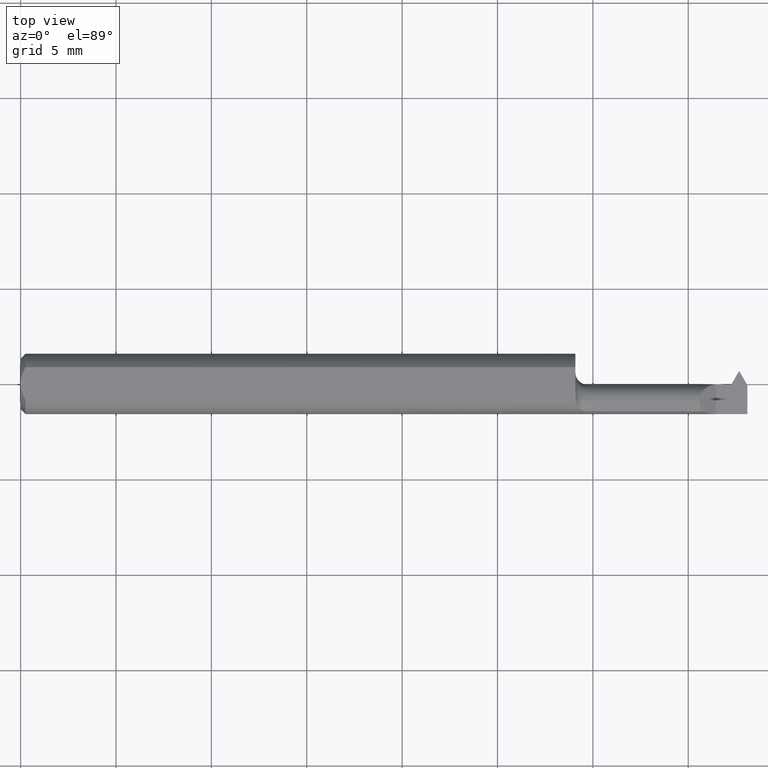
[diagram: clean part render]
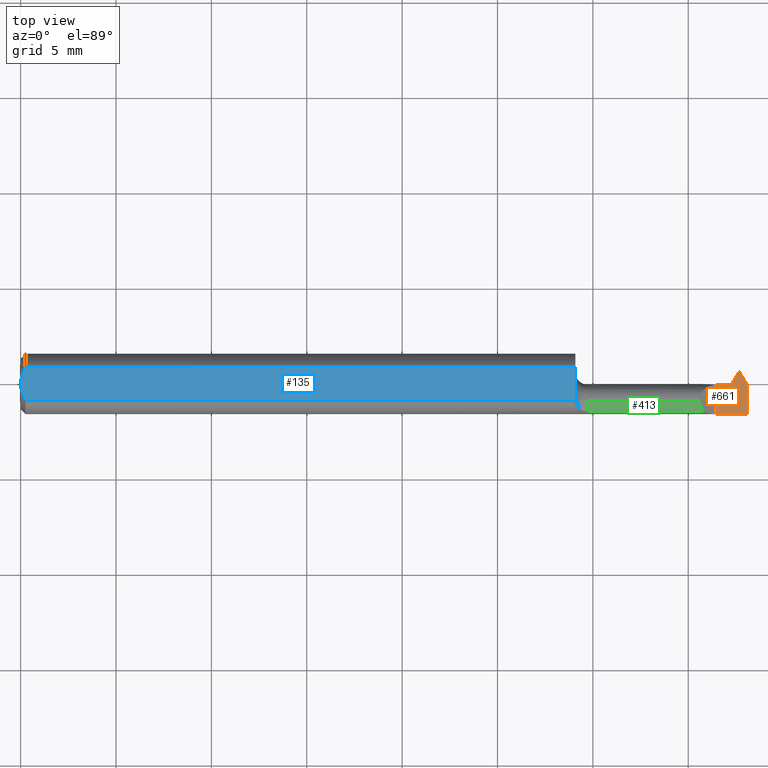
[diagram: same view with three faces highlighted in distinct colors, each labeled with its STEP entity id]
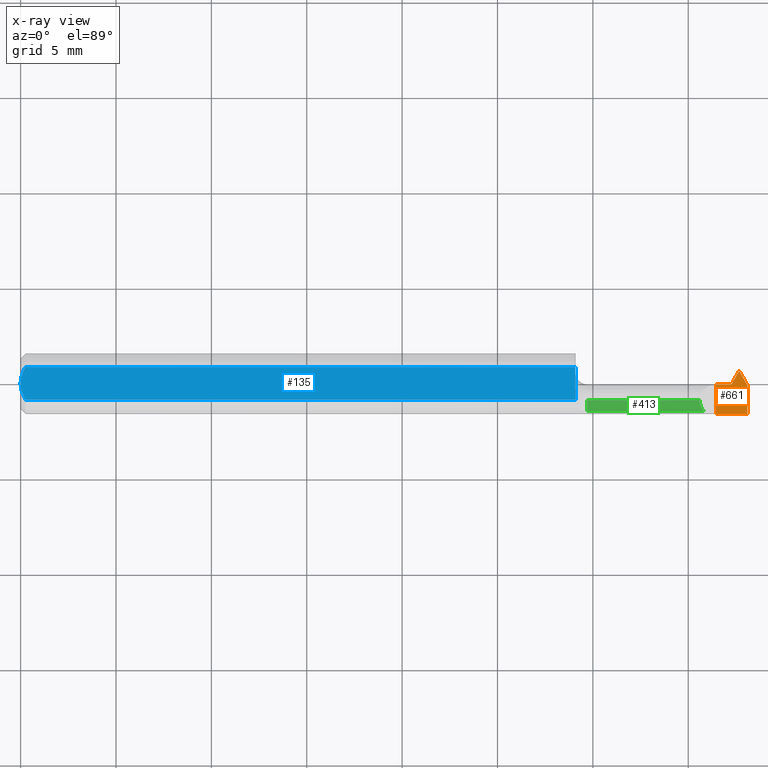
[diagram: x-ray of the same camera — body ghosted, the three highlighted faces saturated]
A machine part, top view with three faces highlighted in distinct colors.
The next image is the same camera in x-ray (body ghosted, the three faces saturated) — at least one of them is partly hidden behind the body in this view.
Their STEP definitions:

[orange] entity #661 — the highlighted planar face has unit normal (-0, 0, -1).
#8 = ORIENTED_EDGE ( 'NONE', *, *, #417, .F. ) ;
#20 = CARTESIAN_POINT ( 'NONE',  ( 1.466661542731880319, -0.001350000000000033031, 0.000000000000000000 ) ) ;
#28 = CARTESIAN_POINT ( 'NONE',  ( 1.145000000000000240, 0.02564999999999998531, 4.347496136973102887E-17 ) ) ;
#61 = CARTESIAN_POINT ( 'NONE',  ( 1.464661542731879873, -0.001349999999999978604, 0.000000000000000000 ) ) ;
#82 = CARTESIAN_POINT ( 'NONE',  ( 1.145000000000000240, -0.001350000000000033031, 4.347496136973102887E-17 ) ) ;
#97 = DIRECTION ( 'NONE',  ( -1.000000000000000000, 0.000000000000000000, 1.224646799147353700E-16 ) ) ;
#105 = ORIENTED_EDGE ( 'NONE', *, *, #757, .F. ) ;
#108 = LINE ( 'NONE', #28, #226 ) ;
#112 = DIRECTION ( 'NONE',  ( 0.000000000000000000, -1.000000000000000000, 0.000000000000000000 ) ) ;
#148 = LINE ( 'NONE', #629, #423 ) ;
#174 = FACE_OUTER_BOUND ( 'NONE', #834, .T. ) ;
#192 = CARTESIAN_POINT ( 'NONE',  ( 1.466661542731880319, -0.001350000000000033031, 0.000000000000000000 ) ) ;
#194 = VECTOR ( 'NONE', #825, 39.37007874015748143 ) ;
#206 = LINE ( 'NONE', #82, #407 ) ;
#218 = VERTEX_POINT ( 'NONE', #20 ) ;
#225 = CARTESIAN_POINT ( 'NONE',  ( 1.500000000000000222, -0.2500000000000000555, 0.000000000000000000 ) ) ;
#226 = VECTOR ( 'NONE', #595, 39.37007874015748143 ) ;
#231 = EDGE_CURVE ( 'NONE', #520, #252, #108, .T. ) ;
#242 = CARTESIAN_POINT ( 'NONE',  ( 1.483749999999999902, 0.02564999999999998531, 0.000000000000000000 ) ) ;
#252 = VERTEX_POINT ( 'NONE', #461 ) ;
#261 = EDGE_CURVE ( 'NONE', #579, #810, #741, .T. ) ;
#287 = ORIENTED_EDGE ( 'NONE', *, *, #261, .F. ) ;
#299 = ORIENTED_EDGE ( 'NONE', *, *, #231, .F. ) ;
#325 = VECTOR ( 'NONE', #647, 39.37007874015748854 ) ;
#377 = CARTESIAN_POINT ( 'NONE',  ( 1.500000000000000222, 0.000000000000000000, 0.000000000000000000 ) ) ;
#380 = VECTOR ( 'NONE', #112, 39.37007874015748143 ) ;
#397 = CARTESIAN_POINT ( 'NONE',  ( 1.435000000000000053, -0.001350000000000033031, 4.347496136973102887E-17 ) ) ;
#401 = CARTESIAN_POINT ( 'NONE',  ( 1.435000000000000053, -0.06235000000000005121, 7.960204194457796709E-18 ) ) ;
#407 = VECTOR ( 'NONE', #623, 39.37007874015748143 ) ;
#411 = VERTEX_POINT ( 'NONE', #61 ) ;
#415 = LINE ( 'NONE', #192, #515 ) ;
#417 = EDGE_CURVE ( 'NONE', #810, #770, #553, .T. ) ;
#421 = CARTESIAN_POINT ( 'NONE',  ( 1.482250000000000068, 0.02564999999999998531, 0.000000000000000000 ) ) ;
#423 = VECTOR ( 'NONE', #838, 39.37007874015748143 ) ;
#430 = EDGE_CURVE ( 'NONE', #411, #218, #415, .T. ) ;
#461 = CARTESIAN_POINT ( 'NONE',  ( 1.483749999999999902, 0.02564999999999998531, 0.000000000000000000 ) ) ;
#483 = DIRECTION ( 'NONE',  ( 1.000000000000000000, -2.721176712438446578E-14, -0.000000000000000000 ) ) ;
#493 = CARTESIAN_POINT ( 'NONE',  ( 1.500000000000000222, -0.002495825622994883239, 0.000000000000000000 ) ) ;
#515 = VECTOR ( 'NONE', #483, 39.37007874015748143 ) ;
#520 = VERTEX_POINT ( 'NONE', #421 ) ;
#525 = PLANE ( 'NONE',  #833 ) ;
#543 = LINE ( 'NONE', #829, #571 ) ;
#545 = ORIENTED_EDGE ( 'NONE', *, *, #655, .F. ) ;
#549 = CARTESIAN_POINT ( 'NONE',  ( 2.249639673992787780E-32, -0.06234999999999999570, 1.836970198721030181E-16 ) ) ;
#553 = LINE ( 'NONE', #549, #194 ) ;
#571 = VECTOR ( 'NONE', #890, 39.37007874015748854 ) ;
#579 = VERTEX_POINT ( 'NONE', #493 ) ;
#595 = DIRECTION ( 'NONE',  ( 1.000000000000000000, 0.000000000000000000, 0.000000000000000000 ) ) ;
#612 = CARTESIAN_POINT ( 'NONE',  ( 1.500000000000000222, -0.06235000000000000264, 0.000000000000000000 ) ) ;
#623 = DIRECTION ( 'NONE',  ( 1.000000000000000000, 0.000000000000000000, 0.000000000000000000 ) ) ;
#628 = ORIENTED_EDGE ( 'NONE', *, *, #430, .F. ) ;
#629 = CARTESIAN_POINT ( 'NONE',  ( 1.435000000000000053, -0.2500000000000000555, 7.960204194457796709E-18 ) ) ;
#646 = ORIENTED_EDGE ( 'NONE', *, *, #904, .F. ) ;
#647 = DIRECTION ( 'NONE',  ( 0.4999999999999949485, -0.8660254037844414832, 0.000000000000000000 ) ) ;
#655 = EDGE_CURVE ( 'NONE', #252, #579, #792, .T. ) ;
#661 = ADVANCED_FACE ( 'NONE', ( #174 ), #525, .F. ) ;
#664 = DIRECTION ( 'NONE',  ( -1.224646799147353700E-16, 0.000000000000000000, -1.000000000000000000 ) ) ;
#740 = ORIENTED_EDGE ( 'NONE', *, *, #902, .F. ) ;
#741 = LINE ( 'NONE', #377, #380 ) ;
#742 = VERTEX_POINT ( 'NONE', #397 ) ;
#757 = EDGE_CURVE ( 'NONE', #218, #520, #543, .T. ) ;
#770 = VERTEX_POINT ( 'NONE', #401 ) ;
#792 = LINE ( 'NONE', #242, #325 ) ;
#810 = VERTEX_POINT ( 'NONE', #612 ) ;
#825 = DIRECTION ( 'NONE',  ( -1.000000000000000000, -0.000000000000000000, -0.000000000000000000 ) ) ;
#829 = CARTESIAN_POINT ( 'NONE',  ( 1.482250000000000068, 0.02564999999999998531, 0.000000000000000000 ) ) ;
#833 = AXIS2_PLACEMENT_3D ( 'NONE', #225, #664, #97 ) ;
#834 = EDGE_LOOP ( 'NONE', ( #299, #105, #628, #646, #740, #8, #287, #545 ) ) ;
#838 = DIRECTION ( 'NONE',  ( -0.000000000000000000, 1.000000000000000000, -0.000000000000000000 ) ) ;
#890 = DIRECTION ( 'NONE',  ( 0.4999999999999961142, 0.8660254037844408170, -0.000000000000000000 ) ) ;
#902 = EDGE_CURVE ( 'NONE', #770, #742, #148, .T. ) ;
#904 = EDGE_CURVE ( 'NONE', #742, #411, #206, .T. ) ;

[blue] entity #135 — the highlighted planar face has unit normal (0, 0, 1).
#29 = VERTEX_POINT ( 'NONE', #821 ) ;
#42 = ORIENTED_EDGE ( 'NONE', *, *, #319, .T. ) ;
#73 = DIRECTION ( 'NONE',  ( 0.000000000000000000, 0.000000000000000000, 1.000000000000000000 ) ) ;
#81 = VERTEX_POINT ( 'NONE', #294 ) ;
#100 = AXIS2_PLACEMENT_3D ( 'NONE', #422, #73, #512 ) ;
#120 = VERTEX_POINT ( 'NONE', #426 ) ;
#135 = ADVANCED_FACE ( 'NONE', ( #648 ), #367, .T. ) ;
#146 = EDGE_LOOP ( 'NONE', ( #42, #542, #719, #487, #455, #340 ) ) ;
#169 = CARTESIAN_POINT ( 'NONE',  ( 1.145765915872935414, -0.03386738844375226237, 0.05234999999999997294 ) ) ;
#254 = CARTESIAN_POINT ( 'NONE',  ( -8.573957617566337510E-16, 0.005954997531773997300, 0.05234999999999997294 ) ) ;
#257 = CARTESIAN_POINT ( 'NONE',  ( 0.01000000000000001582, 0.03386738844375224849, 0.05234999999999997294 ) ) ;
#270 = EDGE_CURVE ( 'NONE', #120, #344, #706, .T. ) ;
#274 = LINE ( 'NONE', #435, #818 ) ;
#291 = VERTEX_POINT ( 'NONE', #737 ) ;
#294 = CARTESIAN_POINT ( 'NONE',  ( 0.000000000000000000, 0.000000000000000000, 0.05234999999999997294 ) ) ;
#319 = EDGE_CURVE ( 'NONE', #291, #120, #450, .T. ) ;
#340 = ORIENTED_EDGE ( 'NONE', *, *, #442, .F. ) ;
#342 = EDGE_CURVE ( 'NONE', #81, #29, #405, .T. ) ;
#344 = VERTEX_POINT ( 'NONE', #408 ) ;
#346 = LINE ( 'NONE', #567, #626 ) ;
#358 = CARTESIAN_POINT ( 'NONE',  ( 1.145000000000000240, 0.03386738844375224849, 0.05234999999999997294 ) ) ;
#367 = PLANE ( 'NONE',  #100 ) ;
#398 = CARTESIAN_POINT ( 'NONE',  ( 0.001055043921633170472, -0.01186408073210962373, 0.05234999999999998682 ) ) ;
#405 = B_SPLINE_CURVE_WITH_KNOTS ( 'NONE', 3,
 ( #905, #254, #898, #616, #823, #257 ),
 .UNSPECIFIED., .F., .F.,
 ( 4, 2, 4 ),
 ( 0.003093386807937201569, 0.003544501666246021275, 0.003995616524554840981 ),
 .UNSPECIFIED. ) ;
#408 = CARTESIAN_POINT ( 'NONE',  ( 1.145000000000000240, -0.008740088089003446997, 0.05234999999999997294 ) ) ;
#412 = B_SPLINE_CURVE_WITH_KNOTS ( 'NONE', 3,
 ( #488, #758, #754, #398, #678, #820 ),
 .UNSPECIFIED., .F., .F.,
 ( 4, 2, 4 ),
 ( 0.002189598257423869612, 0.002641492532680535590, 0.003093386807937201569 ),
 .UNSPECIFIED. ) ;
#422 = CARTESIAN_POINT ( 'NONE',  ( 1.630958352158234037, 0.06235000000000000264, 0.05234999999999997294 ) ) ;
#426 = CARTESIAN_POINT ( 'NONE',  ( 1.145765915872935414, -0.03386738844375226237, 0.05234999999999997294 ) ) ;
#435 = CARTESIAN_POINT ( 'NONE',  ( 0.000000000000000000, 0.03386738844375224849, 0.05234999999999997294 ) ) ;
#442 = EDGE_CURVE ( 'NONE', #291, #81, #412, .T. ) ;
#450 = LINE ( 'NONE', #869, #801 ) ;
#455 = ORIENTED_EDGE ( 'NONE', *, *, #342, .F. ) ;
#487 = ORIENTED_EDGE ( 'NONE', *, *, #822, .T. ) ;
#488 = CARTESIAN_POINT ( 'NONE',  ( 0.01000000000000001582, -0.03386738844375224849, 0.05234999999999997294 ) ) ;
#491 = DIRECTION ( 'NONE',  ( -1.000000000000000000, -0.000000000000000000, -0.000000000000000000 ) ) ;
#512 = DIRECTION ( 'NONE',  ( 1.000000000000000000, 0.000000000000000000, -0.000000000000000000 ) ) ;
#522 = CARTESIAN_POINT ( 'NONE',  ( 1.145745998177347236, -0.02967893643233972256, 0.05234999999999997294 ) ) ;
#541 = EDGE_CURVE ( 'NONE', #344, #899, #346, .T. ) ;
#542 = ORIENTED_EDGE ( 'NONE', *, *, #270, .T. ) ;
#567 = CARTESIAN_POINT ( 'NONE',  ( 1.145000000000000240, 0.06235000000000000264, 0.05234999999999997294 ) ) ;
#590 = CARTESIAN_POINT ( 'NONE',  ( 1.145000000000000240, -0.008740088089003446997, 0.05234999999999997294 ) ) ;
#616 = CARTESIAN_POINT ( 'NONE',  ( 0.004671770759546948343, 0.02323517832780106970, 0.05234999999999998682 ) ) ;
#626 = VECTOR ( 'NONE', #844, 39.37007874015748143 ) ;
#648 = FACE_OUTER_BOUND ( 'NONE', #146, .T. ) ;
#676 = CARTESIAN_POINT ( 'NONE',  ( 1.145000000000000462, -0.01292864522488349800, 0.05234999999999997294 ) ) ;
#678 = CARTESIAN_POINT ( 'NONE',  ( -8.345942350761171353E-16, -0.005965286321680269427, 0.05234999999999997294 ) ) ;
#706 = B_SPLINE_CURVE_WITH_KNOTS ( 'NONE', 3,
 ( #169, #522, #875, #793, #676, #590 ),
 .UNSPECIFIED., .F., .F.,
 ( 4, 2, 4 ),
 ( 0.007083260706228929580, 0.007400580848369301377, 0.007717900990509673174 ),
 .UNSPECIFIED. ) ;
#719 = ORIENTED_EDGE ( 'NONE', *, *, #541, .T. ) ;
#722 = DIRECTION ( 'NONE',  ( 1.000000000000000000, 0.000000000000000000, 0.000000000000000000 ) ) ;
#737 = CARTESIAN_POINT ( 'NONE',  ( 0.01000000000000001582, -0.03386738844375224849, 0.05234999999999997294 ) ) ;
#754 = CARTESIAN_POINT ( 'NONE',  ( 0.004679365186781183836, -0.02325953974079657954, 0.05234999999999997988 ) ) ;
#758 = CARTESIAN_POINT ( 'NONE',  ( 0.007163450771350545095, -0.02864528976618617440, 0.05234999999999997294 ) ) ;
#793 = CARTESIAN_POINT ( 'NONE',  ( 1.145206170615658658, -0.01711611420394893238, 0.05234999999999998682 ) ) ;
#801 = VECTOR ( 'NONE', #722, 39.37007874015748143 ) ;
#818 = VECTOR ( 'NONE', #491, 39.37007874015748143 ) ;
#820 = CARTESIAN_POINT ( 'NONE',  ( 0.000000000000000000, 0.000000000000000000, 0.05234999999999997294 ) ) ;
#821 = CARTESIAN_POINT ( 'NONE',  ( 0.01000000000000001582, 0.03386738844375224849, 0.05234999999999997294 ) ) ;
#822 = EDGE_CURVE ( 'NONE', #899, #29, #274, .T. ) ;
#823 = CARTESIAN_POINT ( 'NONE',  ( 0.007185421074056353927, 0.02868573718286563864, 0.05234999999999997294 ) ) ;
#844 = DIRECTION ( 'NONE',  ( 0.000000000000000000, 1.000000000000000000, 0.000000000000000000 ) ) ;
#869 = CARTESIAN_POINT ( 'NONE',  ( 0.000000000000000000, -0.03386738844375224849, 0.05234999999999997294 ) ) ;
#875 = CARTESIAN_POINT ( 'NONE',  ( 1.145583553616766448, -0.02549123666963589926, 0.05234999999999997988 ) ) ;
#898 = CARTESIAN_POINT ( 'NONE',  ( 0.001063697276021587047, 0.01189177144351696164, 0.05234999999999997988 ) ) ;
#899 = VERTEX_POINT ( 'NONE', #358 ) ;
#905 = CARTESIAN_POINT ( 'NONE',  ( 0.000000000000000000, 0.000000000000000000, 0.05234999999999997294 ) ) ;

[green] entity #413 — the highlighted cylindrical surface (edge-blend (fillet) strip) has radius 0.8509 mm, axis along (-1, -0, -0).
#23 = EDGE_CURVE ( 'NONE', #326, #761, #764, .T. ) ;
#60 = CARTESIAN_POINT ( 'NONE',  ( 1.404446574417767435, -0.05089794948110515360, 0.03055342558223266003 ) ) ;
#64 = CARTESIAN_POINT ( 'NONE',  ( 1.170000000000000151, -0.05709892395982783808, 0.02504466774844096855 ) ) ;
#103 = CARTESIAN_POINT ( 'NONE',  ( 1.170000000000000151, -0.03485000000000003373, 0.03349999999999998812 ) ) ;
#117 = CARTESIAN_POINT ( 'NONE',  ( 1.145000000000000240, -0.03485000000000003373, 0.000000000000000000 ) ) ;
#129 = CARTESIAN_POINT ( 'NONE',  ( 1.170000000000000151, -0.03485000000000003373, 0.000000000000000000 ) ) ;
#137 = EDGE_CURVE ( 'NONE', #892, #326, #577, .T. ) ;
#233 = CARTESIAN_POINT ( 'NONE',  ( 1.409955332251558779, -0.05709892395982780339, 0.02504466774844103794 ) ) ;
#244 = CIRCLE ( 'NONE', #712, 0.03349999999999998812 ) ;
#245 = VECTOR ( 'NONE', #854, 39.37007874015748143 ) ;
#247 = EDGE_LOOP ( 'NONE', ( #533, #693, #255, #265 ) ) ;
#255 = ORIENTED_EDGE ( 'NONE', *, *, #446, .F. ) ;
#264 = DIRECTION ( 'NONE',  ( 0.000000000000000000, 0.000000000000000000, 1.000000000000000000 ) ) ;
#265 = ORIENTED_EDGE ( 'NONE', *, *, #137, .T. ) ;
#269 = CARTESIAN_POINT ( 'NONE',  ( 1.401499999999999746, -0.04314448596099430128, 0.03350000000000000894 ) ) ;
#326 = VERTEX_POINT ( 'NONE', #233 ) ;
#413 = ADVANCED_FACE ( 'NONE', ( #684 ), #746, .T. ) ;
#419 = DIRECTION ( 'NONE',  ( -1.000000000000000000, -0.000000000000000000, -0.000000000000000000 ) ) ;
#444 = CARTESIAN_POINT ( 'NONE',  ( 1.317830771365940068, -0.05709892395982781726, 0.02504466774844102059 ) ) ;
#446 = EDGE_CURVE ( 'NONE', #892, #649, #244, .T. ) ;
#473 = CARTESIAN_POINT ( 'NONE',  ( 1.401499999999999746, -0.03485000000000003373, 0.03350000000000000894 ) ) ;
#533 = ORIENTED_EDGE ( 'NONE', *, *, #23, .T. ) ;
#566 = EDGE_CURVE ( 'NONE', #761, #649, #705, .T. ) ;
#577 = LINE ( 'NONE', #444, #753 ) ;
#630 = CARTESIAN_POINT ( 'NONE',  ( 1.145000000000000240, -0.03485000000000003373, 0.03350000000000000894 ) ) ;
#645 = DIRECTION ( 'NONE',  ( 1.000000000000000000, 0.000000000000000000, 0.000000000000000000 ) ) ;
#649 = VERTEX_POINT ( 'NONE', #103 ) ;
#680 = CARTESIAN_POINT ( 'NONE',  ( 1.401499999999999746, -0.03485000000000003373, 0.03350000000000000894 ) ) ;
#684 = FACE_OUTER_BOUND ( 'NONE', #247, .T. ) ;
#688 = DIRECTION ( 'NONE',  ( 0.000000000000000000, 0.000000000000000000, 1.000000000000000000 ) ) ;
#693 = ORIENTED_EDGE ( 'NONE', *, *, #566, .T. ) ;
#697 = AXIS2_PLACEMENT_3D ( 'NONE', #117, #894, #264 ) ;
#705 = LINE ( 'NONE', #630, #245 ) ;
#712 = AXIS2_PLACEMENT_3D ( 'NONE', #129, #419, #688 ) ;
#746 = CYLINDRICAL_SURFACE ( 'NONE', #697, 0.03350000000000000894 ) ;
#753 = VECTOR ( 'NONE', #645, 39.37007874015748143 ) ;
#761 = VERTEX_POINT ( 'NONE', #680 ) ;
#764 =( BOUNDED_CURVE ( )  B_SPLINE_CURVE ( 3, ( #906, #60, #269, #473 ),
 .UNSPECIFIED., .F., .F. ) 
 B_SPLINE_CURVE_WITH_KNOTS ( ( 4, 4 ),
 ( 5.556833071257592849, 6.283185307179586232 ),
 .UNSPECIFIED. ) 
 CURVE ( )  GEOMETRIC_REPRESENTATION_ITEM ( )  RATIONAL_B_SPLINE_CURVE ( ( 1.000000000000000000, 0.9565154936723330170, 0.9565154936723330170, 1.000000000000000000 ) ) 
 REPRESENTATION_ITEM ( '' )  );
#854 = DIRECTION ( 'NONE',  ( -1.000000000000000000, -0.000000000000000000, -0.000000000000000000 ) ) ;
#892 = VERTEX_POINT ( 'NONE', #64 ) ;
#894 = DIRECTION ( 'NONE',  ( -1.000000000000000000, -0.000000000000000000, -0.000000000000000000 ) ) ;
#906 = CARTESIAN_POINT ( 'NONE',  ( 1.409955332251558779, -0.05709892395982780339, 0.02504466774844103794 ) ) ;